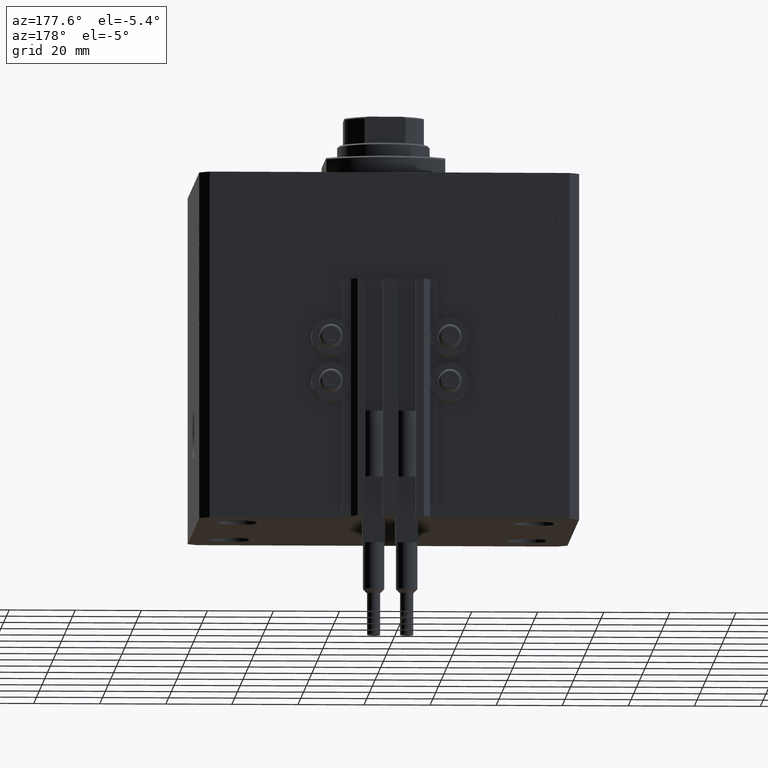
[diagram: clean part render]
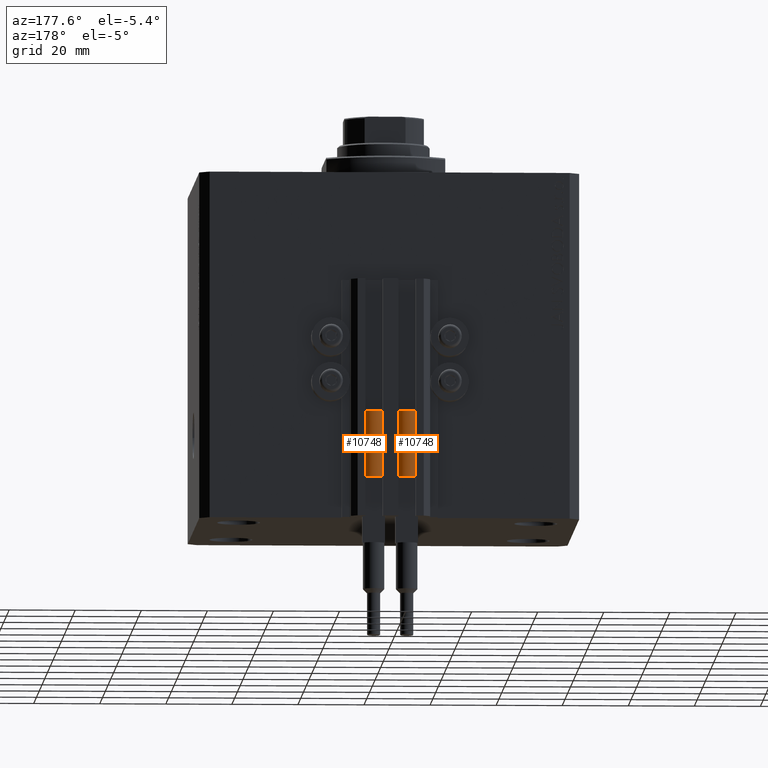
[diagram: same view with one multi-face feature highlighted, each face labeled with its STEP entity id]
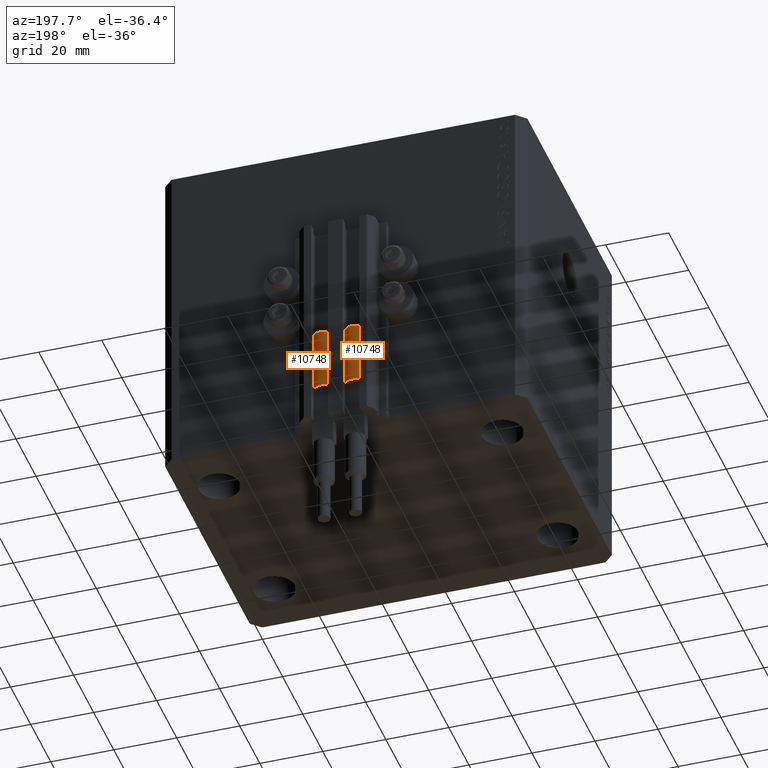
[diagram: same view with one multi-face feature highlighted, each face labeled with its STEP entity id]
A machine part, auxiliary view. The highlighted faces form ONE feature: a constant-radius fillet chain: 2 tangent blend faces with common blend radius 3.4 mm. The faces share edges in the B-rep.
A second angle (auxiliary view) of the same feature is appended — it is thin or edge-on in the first view.
Their STEP definitions:
[1] entity #10748 (Cylinder):
#1108 = CARTESIAN_POINT ( 'NONE',  ( 3.400000000000000355, 4.163799117101001052E-16, 20.00000000000000000 ) ) ;
#1118 = CARTESIAN_POINT ( 'NONE',  ( 0.000000000000000000, 0.000000000000000000, 20.00000000000000000 ) ) ;
#1950 = EDGE_LOOP ( 'NONE', ( #14272, #11448, #29253, #30353, #12062, #26301 ) ) ;
#2542 = CARTESIAN_POINT ( 'NONE',  ( 3.051229260478471428, -1.500000000000000000, 20.00000000000000000 ) ) ;
#3439 = CARTESIAN_POINT ( 'NONE',  ( -3.399999999999999467, -4.915049848600952119E-16, 20.00000000000000000 ) ) ;
#7028 = CARTESIAN_POINT ( 'NONE',  ( 3.400000000000000355, 4.163799117101001052E-16, 0.000000000000000000 ) ) ;
#7227 = EDGE_CURVE ( 'NONE', #30820, #35640, #27340, .T. ) ;
#9362 = EDGE_CURVE ( 'NONE', #14096, #30820, #46684, .T. ) ;
#10748 = ADVANCED_FACE ( 'NONE', ( #23723 ), #24207, .T. ) ;
#11448 = ORIENTED_EDGE ( 'NONE', *, *, #17332, .F. ) ;
#11713 = CARTESIAN_POINT ( 'NONE',  ( 0.000000000000000000, 0.000000000000000000, 0.000000000000000000 ) ) ;
#12062 = ORIENTED_EDGE ( 'NONE', *, *, #9362, .T. ) ;
#12341 = VERTEX_POINT ( 'NONE', #21061 ) ;
#12977 = CARTESIAN_POINT ( 'NONE',  ( -3.400000000000000355, 0.000000000000000000, 0.000000000000000000 ) ) ;
#13510 = EDGE_CURVE ( 'NONE', #12341, #35640, #34630, .T. ) ;
#14096 = VERTEX_POINT ( 'NONE', #3439 ) ;
#14272 = ORIENTED_EDGE ( 'NONE', *, *, #13510, .F. ) ;
#14848 = EDGE_CURVE ( 'NONE', #14096, #41701, #39234, .T. ) ;
#15164 = AXIS2_PLACEMENT_3D ( 'NONE', #24614, #47184, #20717 ) ;
#16334 = DIRECTION ( 'NONE',  ( -0.000000000000000000, -0.000000000000000000, -1.000000000000000000 ) ) ;
#17135 = CARTESIAN_POINT ( 'NONE',  ( -3.051229260478471428, -1.500000000000000000, 20.00000000000000000 ) ) ;
#17250 = EDGE_CURVE ( 'NONE', #41701, #44546, #46224, .T. ) ;
#17332 = EDGE_CURVE ( 'NONE', #44546, #12341, #27630, .T. ) ;
#19338 = DIRECTION ( 'NONE',  ( 1.000000000000000000, 0.000000000000000000, 0.000000000000000000 ) ) ;
#19812 = DIRECTION ( 'NONE',  ( -0.000000000000000000, -0.000000000000000000, -1.000000000000000000 ) ) ;
#20069 = DIRECTION ( 'NONE',  ( -0.000000000000000000, -0.000000000000000000, -1.000000000000000000 ) ) ;
#20465 = CARTESIAN_POINT ( 'NONE',  ( -3.400000000000000355, 0.000000000000000000, 20.00000000000000000 ) ) ;
#20717 = DIRECTION ( 'NONE',  ( 1.000000000000000000, 0.000000000000000000, 0.000000000000000000 ) ) ;
#21061 = CARTESIAN_POINT ( 'NONE',  ( 3.400000000000000355, 0.000000000000000000, 20.00000000000000000 ) ) ;
#21138 = AXIS2_PLACEMENT_3D ( 'NONE', #11713, #41349, #44028 ) ;
#22977 = AXIS2_PLACEMENT_3D ( 'NONE', #1118, #26873, #41678 ) ;
#23723 = FACE_OUTER_BOUND ( 'NONE', #1950, .T. ) ;
#24207 = CYLINDRICAL_SURFACE ( 'NONE', #25885, 3.400000000000000355 ) ;
#24438 = VECTOR ( 'NONE', #19812, 1000.000000000000000 ) ;
#24614 = CARTESIAN_POINT ( 'NONE',  ( 0.000000000000000000, 0.000000000000000000, 20.00000000000000000 ) ) ;
#25885 = AXIS2_PLACEMENT_3D ( 'NONE', #27608, #20069, #42409 ) ;
#26061 = AXIS2_PLACEMENT_3D ( 'NONE', #29391, #44424, #19338 ) ;
#26301 = ORIENTED_EDGE ( 'NONE', *, *, #7227, .T. ) ;
#26873 = DIRECTION ( 'NONE',  ( 0.000000000000000000, 0.000000000000000000, 1.000000000000000000 ) ) ;
#27340 = CIRCLE ( 'NONE', #21138, 3.400000000000000355 ) ;
#27608 = CARTESIAN_POINT ( 'NONE',  ( 0.000000000000000000, 0.000000000000000000, 20.00000000000000000 ) ) ;
#27630 = CIRCLE ( 'NONE', #26061, 3.400000000000000355 ) ;
#29253 = ORIENTED_EDGE ( 'NONE', *, *, #17250, .F. ) ;
#29391 = CARTESIAN_POINT ( 'NONE',  ( 0.000000000000000000, 0.000000000000000000, 20.00000000000000000 ) ) ;
#30353 = ORIENTED_EDGE ( 'NONE', *, *, #14848, .F. ) ;
#30820 = VERTEX_POINT ( 'NONE', #12977 ) ;
#33621 = VECTOR ( 'NONE', #16334, 1000.000000000000000 ) ;
#34630 = LINE ( 'NONE', #1108, #24438 ) ;
#35640 = VERTEX_POINT ( 'NONE', #7028 ) ;
#39234 = CIRCLE ( 'NONE', #15164, 3.400000000000000355 ) ;
#41349 = DIRECTION ( 'NONE',  ( 0.000000000000000000, 0.000000000000000000, 1.000000000000000000 ) ) ;
#41678 = DIRECTION ( 'NONE',  ( 1.000000000000000000, 0.000000000000000000, 0.000000000000000000 ) ) ;
#41701 = VERTEX_POINT ( 'NONE', #17135 ) ;
#42409 = DIRECTION ( 'NONE',  ( -1.000000000000000000, 0.000000000000000000, 0.000000000000000000 ) ) ;
#44028 = DIRECTION ( 'NONE',  ( 1.000000000000000000, 0.000000000000000000, 0.000000000000000000 ) ) ;
#44424 = DIRECTION ( 'NONE',  ( 0.000000000000000000, 0.000000000000000000, 1.000000000000000000 ) ) ;
#44546 = VERTEX_POINT ( 'NONE', #2542 ) ;
#46224 = CIRCLE ( 'NONE', #22977, 3.400000000000000355 ) ;
#46684 = LINE ( 'NONE', #20465, #33621 ) ;
#47184 = DIRECTION ( 'NONE',  ( 0.000000000000000000, 0.000000000000000000, 1.000000000000000000 ) ) ;
[2] entity #10748 (Cylinder):
#1108 = CARTESIAN_POINT ( 'NONE',  ( 3.400000000000000355, 4.163799117101001052E-16, 20.00000000000000000 ) ) ;
#1118 = CARTESIAN_POINT ( 'NONE',  ( 0.000000000000000000, 0.000000000000000000, 20.00000000000000000 ) ) ;
#1950 = EDGE_LOOP ( 'NONE', ( #14272, #11448, #29253, #30353, #12062, #26301 ) ) ;
#2542 = CARTESIAN_POINT ( 'NONE',  ( 3.051229260478471428, -1.500000000000000000, 20.00000000000000000 ) ) ;
#3439 = CARTESIAN_POINT ( 'NONE',  ( -3.399999999999999467, -4.915049848600952119E-16, 20.00000000000000000 ) ) ;
#7028 = CARTESIAN_POINT ( 'NONE',  ( 3.400000000000000355, 4.163799117101001052E-16, 0.000000000000000000 ) ) ;
#7227 = EDGE_CURVE ( 'NONE', #30820, #35640, #27340, .T. ) ;
#9362 = EDGE_CURVE ( 'NONE', #14096, #30820, #46684, .T. ) ;
#10748 = ADVANCED_FACE ( 'NONE', ( #23723 ), #24207, .T. ) ;
#11448 = ORIENTED_EDGE ( 'NONE', *, *, #17332, .F. ) ;
#11713 = CARTESIAN_POINT ( 'NONE',  ( 0.000000000000000000, 0.000000000000000000, 0.000000000000000000 ) ) ;
#12062 = ORIENTED_EDGE ( 'NONE', *, *, #9362, .T. ) ;
#12341 = VERTEX_POINT ( 'NONE', #21061 ) ;
#12977 = CARTESIAN_POINT ( 'NONE',  ( -3.400000000000000355, 0.000000000000000000, 0.000000000000000000 ) ) ;
#13510 = EDGE_CURVE ( 'NONE', #12341, #35640, #34630, .T. ) ;
#14096 = VERTEX_POINT ( 'NONE', #3439 ) ;
#14272 = ORIENTED_EDGE ( 'NONE', *, *, #13510, .F. ) ;
#14848 = EDGE_CURVE ( 'NONE', #14096, #41701, #39234, .T. ) ;
#15164 = AXIS2_PLACEMENT_3D ( 'NONE', #24614, #47184, #20717 ) ;
#16334 = DIRECTION ( 'NONE',  ( -0.000000000000000000, -0.000000000000000000, -1.000000000000000000 ) ) ;
#17135 = CARTESIAN_POINT ( 'NONE',  ( -3.051229260478471428, -1.500000000000000000, 20.00000000000000000 ) ) ;
#17250 = EDGE_CURVE ( 'NONE', #41701, #44546, #46224, .T. ) ;
#17332 = EDGE_CURVE ( 'NONE', #44546, #12341, #27630, .T. ) ;
#19338 = DIRECTION ( 'NONE',  ( 1.000000000000000000, 0.000000000000000000, 0.000000000000000000 ) ) ;
#19812 = DIRECTION ( 'NONE',  ( -0.000000000000000000, -0.000000000000000000, -1.000000000000000000 ) ) ;
#20069 = DIRECTION ( 'NONE',  ( -0.000000000000000000, -0.000000000000000000, -1.000000000000000000 ) ) ;
#20465 = CARTESIAN_POINT ( 'NONE',  ( -3.400000000000000355, 0.000000000000000000, 20.00000000000000000 ) ) ;
#20717 = DIRECTION ( 'NONE',  ( 1.000000000000000000, 0.000000000000000000, 0.000000000000000000 ) ) ;
#21061 = CARTESIAN_POINT ( 'NONE',  ( 3.400000000000000355, 0.000000000000000000, 20.00000000000000000 ) ) ;
#21138 = AXIS2_PLACEMENT_3D ( 'NONE', #11713, #41349, #44028 ) ;
#22977 = AXIS2_PLACEMENT_3D ( 'NONE', #1118, #26873, #41678 ) ;
#23723 = FACE_OUTER_BOUND ( 'NONE', #1950, .T. ) ;
#24207 = CYLINDRICAL_SURFACE ( 'NONE', #25885, 3.400000000000000355 ) ;
#24438 = VECTOR ( 'NONE', #19812, 1000.000000000000000 ) ;
#24614 = CARTESIAN_POINT ( 'NONE',  ( 0.000000000000000000, 0.000000000000000000, 20.00000000000000000 ) ) ;
#25885 = AXIS2_PLACEMENT_3D ( 'NONE', #27608, #20069, #42409 ) ;
#26061 = AXIS2_PLACEMENT_3D ( 'NONE', #29391, #44424, #19338 ) ;
#26301 = ORIENTED_EDGE ( 'NONE', *, *, #7227, .T. ) ;
#26873 = DIRECTION ( 'NONE',  ( 0.000000000000000000, 0.000000000000000000, 1.000000000000000000 ) ) ;
#27340 = CIRCLE ( 'NONE', #21138, 3.400000000000000355 ) ;
#27608 = CARTESIAN_POINT ( 'NONE',  ( 0.000000000000000000, 0.000000000000000000, 20.00000000000000000 ) ) ;
#27630 = CIRCLE ( 'NONE', #26061, 3.400000000000000355 ) ;
#29253 = ORIENTED_EDGE ( 'NONE', *, *, #17250, .F. ) ;
#29391 = CARTESIAN_POINT ( 'NONE',  ( 0.000000000000000000, 0.000000000000000000, 20.00000000000000000 ) ) ;
#30353 = ORIENTED_EDGE ( 'NONE', *, *, #14848, .F. ) ;
#30820 = VERTEX_POINT ( 'NONE', #12977 ) ;
#33621 = VECTOR ( 'NONE', #16334, 1000.000000000000000 ) ;
#34630 = LINE ( 'NONE', #1108, #24438 ) ;
#35640 = VERTEX_POINT ( 'NONE', #7028 ) ;
#39234 = CIRCLE ( 'NONE', #15164, 3.400000000000000355 ) ;
#41349 = DIRECTION ( 'NONE',  ( 0.000000000000000000, 0.000000000000000000, 1.000000000000000000 ) ) ;
#41678 = DIRECTION ( 'NONE',  ( 1.000000000000000000, 0.000000000000000000, 0.000000000000000000 ) ) ;
#41701 = VERTEX_POINT ( 'NONE', #17135 ) ;
#42409 = DIRECTION ( 'NONE',  ( -1.000000000000000000, 0.000000000000000000, 0.000000000000000000 ) ) ;
#44028 = DIRECTION ( 'NONE',  ( 1.000000000000000000, 0.000000000000000000, 0.000000000000000000 ) ) ;
#44424 = DIRECTION ( 'NONE',  ( 0.000000000000000000, 0.000000000000000000, 1.000000000000000000 ) ) ;
#44546 = VERTEX_POINT ( 'NONE', #2542 ) ;
#46224 = CIRCLE ( 'NONE', #22977, 3.400000000000000355 ) ;
#46684 = LINE ( 'NONE', #20465, #33621 ) ;
#47184 = DIRECTION ( 'NONE',  ( 0.000000000000000000, 0.000000000000000000, 1.000000000000000000 ) ) ;